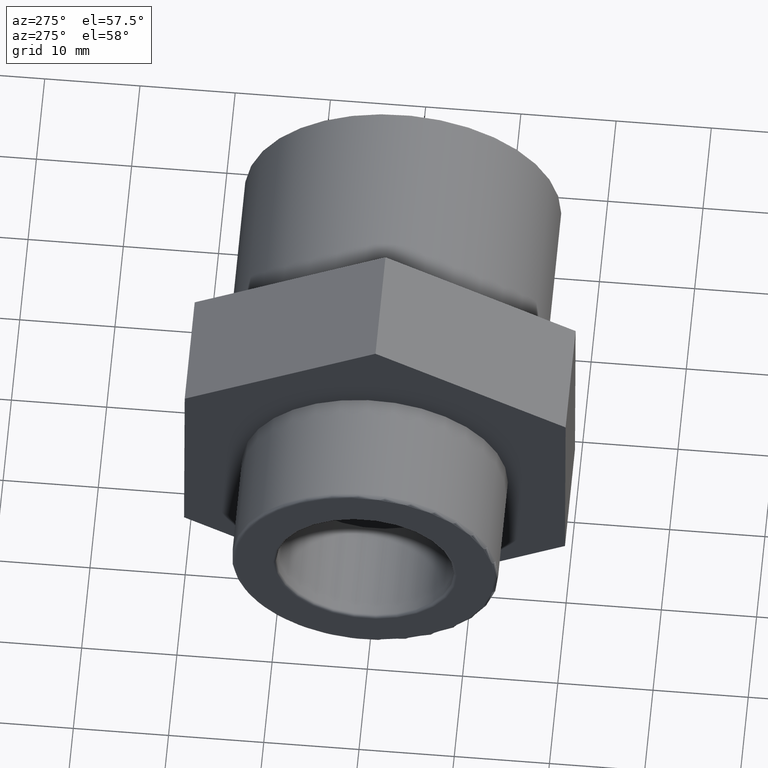
[diagram: clean part render]
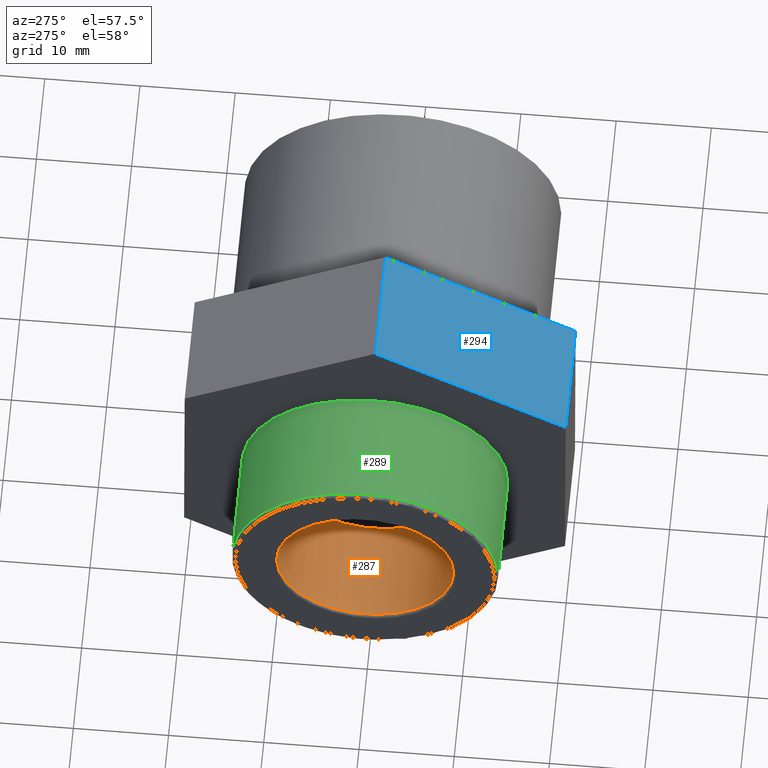
[diagram: same view with three faces highlighted in distinct colors, each labeled with its STEP entity id]
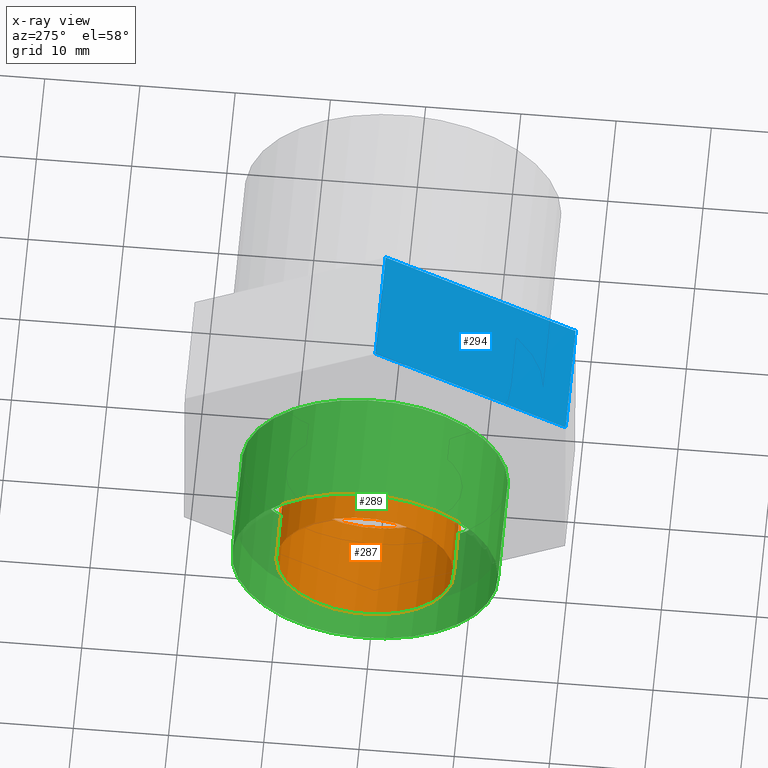
[diagram: x-ray of the same camera — body ghosted, the three highlighted faces saturated]
A machine part, auxiliary view with three faces highlighted in distinct colors.
The next image is the same camera in x-ray (body ghosted, the three faces saturated) — at least one of them is partly hidden behind the body in this view.
Their STEP definitions:

[orange] entity #287 — the highlighted cylindrical surface (bore or boss wall) has radius 9.3155 mm, axis along (-1, -0, 0).
#53=CYLINDRICAL_SURFACE('',#319,9.3155);
#75=FACE_BOUND('',#119,.T.);
#90=FACE_OUTER_BOUND('',#118,.T.);
#118=EDGE_LOOP('',(#226));
#119=EDGE_LOOP('',(#227));
#147=CIRCLE('',#316,9.3155);
#149=CIRCLE('',#320,9.3155);
#161=VERTEX_POINT('',#449);
#163=VERTEX_POINT('',#455);
#187=EDGE_CURVE('',#161,#161,#147,.T.);
#189=EDGE_CURVE('',#163,#163,#149,.T.);
#226=ORIENTED_EDGE('',*,*,#189,.F.);
#227=ORIENTED_EDGE('',*,*,#187,.F.);
#287=ADVANCED_FACE('',(#90,#75),#53,.F.);
#316=AXIS2_PLACEMENT_3D('',#450,#366,#367);
#319=AXIS2_PLACEMENT_3D('',#454,#372,#373);
#320=AXIS2_PLACEMENT_3D('',#456,#374,#375);
#366=DIRECTION('center_axis',(1.,1.83697019872103E-16,0.));
#367=DIRECTION('ref_axis',(-1.8621904095076E-16,1.,6.12323399573677E-17));
#372=DIRECTION('center_axis',(-1.,-1.83697019872103E-16,0.));
#373=DIRECTION('ref_axis',(1.7877027931273E-16,-1.,0.));
#374=DIRECTION('center_axis',(-1.,-1.83697019872103E-16,0.));
#375=DIRECTION('ref_axis',(0.,0.,1.));
#449=CARTESIAN_POINT('',(-22.66751,-9.3155,-1.71122958861858E-15));
#450=CARTESIAN_POINT('Origin',(-22.66751,6.10774221372763E-17,0.));
#454=CARTESIAN_POINT('Origin',(-17.5,1.01033360929657E-15,0.));
#455=CARTESIAN_POINT('',(-12.,-9.3155,0.));
#456=CARTESIAN_POINT('Origin',(-12.,2.02066721859313E-15,0.));

[blue] entity #294 — the highlighted planar face has unit normal (0, -0.5026, 0.8645).
#18=LINE('',#471,#36);
#26=LINE('',#489,#44);
#29=LINE('',#494,#47);
#30=LINE('',#495,#48);
#36=VECTOR('',#389,12.);
#44=VECTOR('',#403,12.);
#47=VECTOR('',#408,23.0940107675851);
#48=VECTOR('',#409,23.0940107675851);
#62=PLANE('',#329);
#97=FACE_OUTER_BOUND('',#128,.T.);
#128=EDGE_LOOP('',(#248,#249,#250,#251));
#166=VERTEX_POINT('',#464);
#169=VERTEX_POINT('',#469);
#175=VERTEX_POINT('',#486);
#176=VERTEX_POINT('',#488);
#195=EDGE_CURVE('',#169,#166,#18,.T.);
#203=EDGE_CURVE('',#176,#175,#26,.T.);
#206=EDGE_CURVE('',#175,#166,#29,.T.);
#207=EDGE_CURVE('',#169,#176,#30,.T.);
#248=ORIENTED_EDGE('',*,*,#206,.T.);
#249=ORIENTED_EDGE('',*,*,#195,.F.);
#250=ORIENTED_EDGE('',*,*,#207,.T.);
#251=ORIENTED_EDGE('',*,*,#203,.T.);
#294=ADVANCED_FACE('',(#97),#62,.T.);
#329=AXIS2_PLACEMENT_3D('',#493,#406,#407);
#389=DIRECTION('',(-1.,-1.23358113847239E-16,0.));
#403=DIRECTION('',(-1.,-1.23358113847239E-16,0.));
#406=DIRECTION('center_axis',(6.1995351612594E-17,-0.502564036358129,0.864539987137336));
#407=DIRECTION('ref_axis',(-1.55431223447522E-16,0.864539987137336,0.502564036358129));
#408=DIRECTION('',(1.58813419197395E-16,-0.864539987137336,-0.502564036358129));
#409=DIRECTION('',(-1.58813419197395E-16,0.864539987137336,0.502564036358129));
#464=CARTESIAN_POINT('',(-11.,-20.0341286131414,11.4876901092189));
#469=CARTESIAN_POINT('',(1.00000000000001,-20.0341286131414,11.4876901092189));
#471=CARTESIAN_POINT('',(1.00000000000001,-20.0341286131414,11.4876901092189));
#486=CARTESIAN_POINT('',(-11.,-0.0684328411838408,23.0939093762746));
#488=CARTESIAN_POINT('',(1.,-0.0684328411838393,23.0939093762746));
#489=CARTESIAN_POINT('',(1.,-0.0684328411838393,23.0939093762746));
#493=CARTESIAN_POINT('Origin',(1.00000000000001,-20.0341286131414,11.4876901092189));
#494=CARTESIAN_POINT('',(-11.,-15.042704670152,14.3892449259829));
#495=CARTESIAN_POINT('',(1.00000000000001,-20.0341286131414,11.4876901092189));

[green] entity #289 — the highlighted cylindrical surface (bore or boss wall) has radius 13.9733 mm, axis along (-1, -0, 0).
#54=CYLINDRICAL_SURFACE('',#323,13.97325);
#77=FACE_BOUND('',#123,.T.);
#92=FACE_OUTER_BOUND('',#122,.T.);
#122=EDGE_LOOP('',(#230));
#123=EDGE_LOOP('',(#231));
#150=CIRCLE('',#322,13.97325);
#151=CIRCLE('',#324,13.97325);
#164=VERTEX_POINT('',#458);
#165=VERTEX_POINT('',#461);
#190=EDGE_CURVE('',#164,#164,#150,.T.);
#191=EDGE_CURVE('',#165,#165,#151,.T.);
#230=ORIENTED_EDGE('',*,*,#191,.T.);
#231=ORIENTED_EDGE('',*,*,#190,.F.);
#289=ADVANCED_FACE('',(#92,#77),#54,.T.);
#322=AXIS2_PLACEMENT_3D('',#459,#378,#379);
#323=AXIS2_PLACEMENT_3D('',#460,#380,#381);
#324=AXIS2_PLACEMENT_3D('',#462,#382,#383);
#378=DIRECTION('center_axis',(-1.,-1.83697019872103E-16,0.));
#379=DIRECTION('ref_axis',(-1.8373612040475E-16,1.,6.12323399573677E-17));
#380=DIRECTION('center_axis',(-1.,-1.83697019872103E-16,0.));
#381=DIRECTION('ref_axis',(1.7877027931273E-16,-1.,0.));
#382=DIRECTION('center_axis',(-1.,-1.83697019872103E-16,0.));
#383=DIRECTION('ref_axis',(0.,0.,1.));
#458=CARTESIAN_POINT('',(-22.66751,-13.97325,8.55614794309288E-16));
#459=CARTESIAN_POINT('Origin',(-22.66751,6.10774221372762E-17,0.));
#460=CARTESIAN_POINT('Origin',(-17.,1.10218211923262E-15,0.));
#461=CARTESIAN_POINT('',(-11.,-13.97325,0.));
#462=CARTESIAN_POINT('Origin',(-11.,2.20436423846524E-15,0.));